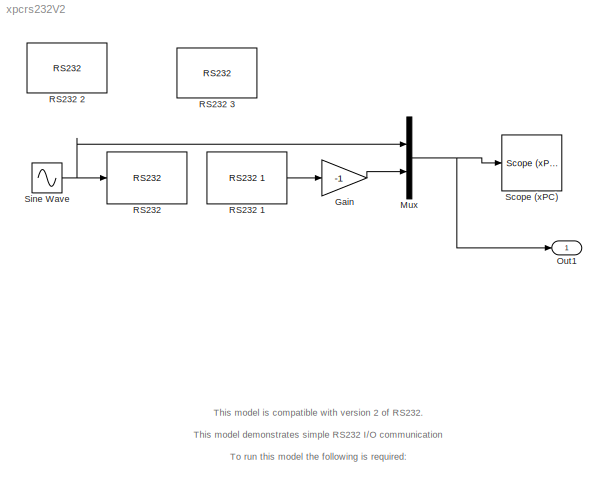
MODEL xpcrs232V2
KIND model
CONFIG AbsTol = auto
CONFIG FixedStep = auto
CONFIG MaxStep = auto
CONFIG MinStep = auto
CONFIG PreLoadFcn = RS232Async_Messages
CONFIG RelTol = 1e-3
CONFIG Solver = ode5
CONFIG SolverMode = Auto
CONFIG StartTime = 0.0
CONFIG StopTime = 300
BLOCK [Gain] Gain
  Gain = -1
BLOCK [Mux] Mux
  DisplayOption = bar
  Inputs = 2
  Ports = [2, 1]
BLOCK [Outport] Out1
BLOCK [Reference] RS232   REF=xpclib/RS232/Asynchronous\nMode/RS232 
  Ports = [1]
  SourceBlock = xpclib/RS232/Asynchronous\nMode/RS232
  SourceType = rs232send
  blockvar = RS232_Send
  port = COM1
  ts = 0.1
BLOCK [Reference] RS232 1  REF=xpclib/RS232/Asynchronous\nMode/RS232 1
  Ports = [0, 1]
  SourceBlock = xpclib/RS232/Asynchronous\nMode/RS232 1
  SourceType = rs232rec
  blockvar = RS232_Receive
  port = COM2
  ts = 0.1
BLOCK [Reference] RS232 2  REF=xpclib/RS232/RS232 
  Ports = []
  SourceBlock = xpclib/RS232/RS232
  SourceType = rs232setup
  baud = 115200
  dbits = 8
  initstruct = []
  parity = None
  port = COM1
  prot = None
  rbuf = 1024
  sbits = 1
  sbuf = 1024
  termstruct = []
BLOCK [Reference] RS232 3  REF=xpclib/RS232/RS232 
  Ports = []
  SourceBlock = xpclib/RS232/RS232
  SourceType = rs232setup
  baud = 115200
  dbits = 8
  initstruct = []
  parity = None
  port = COM2
  prot = None
  rbuf = 1024
  sbits = 1
  sbuf = 1024
  termstruct = []
BLOCK [Reference] Scope (xPC)   REF=xpclib/Misc./Scope (xPC) 
  Ports = [1]
  SourceBlock = xpclib/Misc./Scope (xPC)
  SourceType = xpcscopeblock
  autostart = on
  grid = on
  interleave = 1
  noprepostsamples = 0
  nosamples = 250
  scopeno = 1
  scopetype = Target
  triggerlevel = 0.0
  triggermode = FreeRun
  triggersample = 0
  triggerscope = 1
  triggersignal = 1
  triggerslope = either
  viewmode = Graphical rolling
  ylimits = [0,0]
BLOCK [Sin] Sine Wave
  Frequency = 5
  SampleTime = 0
  SineType = Time based
ANNOTATION (root): This model is compatible with version 2 of RS232.\n\nThis model demonstrates simple RS232 I/O communication\n\nTo run this model the following is required:\n\n1. In xpcsetup, use TCP/IP as your host-target communication setting before creating your boot disk.\nAlso, TargetScope must be enabled and the TargetMouse property must to be set to 'None'.\n\n2. Use the serial null-modem cable provided wit...<+456ch>
LINE Gain:1 -> Mux:2
NET Mux:1 -> Out1:1, Scope (xPC) :1
LINE RS232 1:1 -> Gain:1
NET Sine Wave:1 -> Mux:1, RS232 :1
note: NET lines group one-source signal fan-out (src -> all destinations, sorted); 1:1 wires keep LINE
